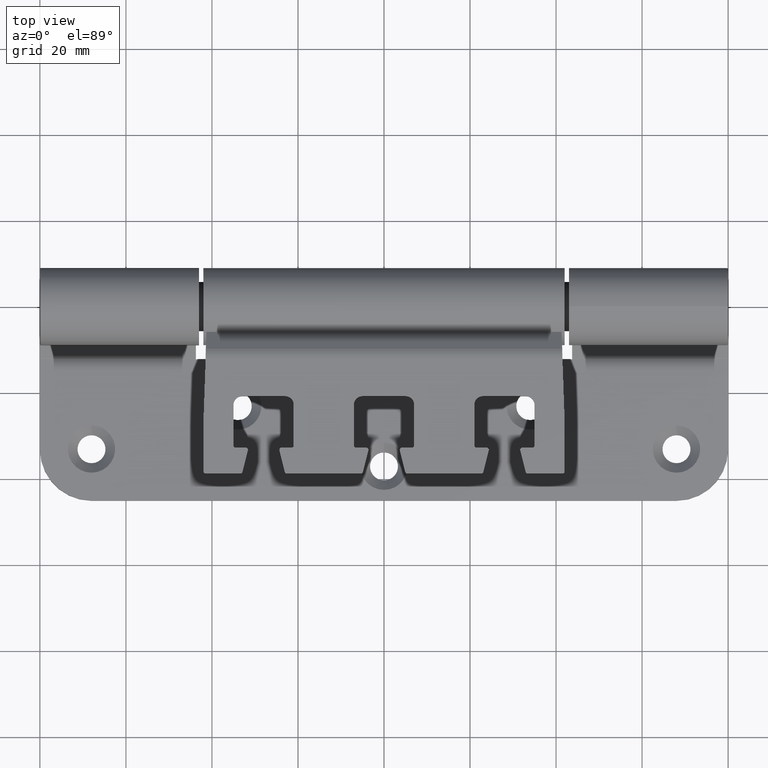
[diagram: clean part render]
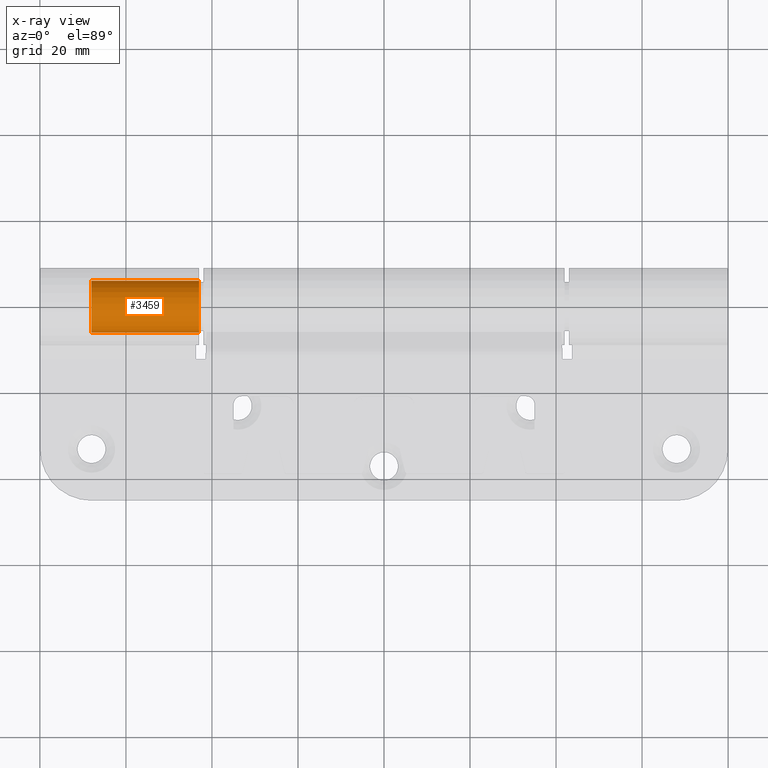
[diagram: x-ray — body ghosted, one internal face saturated and labeled with its STEP entity id]
A machine part, top view, then the same camera in x-ray: the body is ghosted and one INTERNAL B-rep face — a face not visible from any outside direction — is saturated and labeled: STEP entity #3459.
In plain terms, the highlighted cylindrical surface (bore or boss wall) has radius 6 mm, axis along (1, -0, -0).
Its self-contained STEP definition (entity closure, byte-faithful):
#275 = DIRECTION ( 'NONE',  ( -8.415141050721372500E-017, -5.551115123125775900E-017, 1.000000000000000000 ) ) ;
#648 = FACE_OUTER_BOUND ( 'NONE', #8405, .T. ) ;
#816 = ORIENTED_EDGE ( 'NONE', *, *, #5964, .F. ) ;
#1408 = CARTESIAN_POINT ( 'NONE',  ( 25.00000000000004300, -8.139322549283178900E-015, 6.000000000000007100 ) ) ;
#1665 = AXIS2_PLACEMENT_3D ( 'NONE', #13366, #6694, #275 ) ;
#1840 = CIRCLE ( 'NONE', #7724, 6.000000000000007100 ) ;
#2270 = VERTEX_POINT ( 'NONE', #1408 ) ;
#3414 = EDGE_LOOP ( 'NONE', ( #816 ) ) ;
#3459 = ADVANCED_FACE ( 'NONE', ( #10089, #648 ), #3911, .F. ) ;
#3911 = CYLINDRICAL_SURFACE ( 'NONE', #6034, 6.000000000000007100 ) ;
#5609 = DIRECTION ( 'NONE',  ( 0.0000000000000000000, -5.551115123125780900E-017, 1.000000000000000000 ) ) ;
#5768 = ORIENTED_EDGE ( 'NONE', *, *, #13104, .T. ) ;
#5964 = EDGE_CURVE ( 'NONE', #2270, #2270, #1840, .T. ) ;
#6034 = AXIS2_PLACEMENT_3D ( 'NONE', #7029, #8120, #10252 ) ;
#6694 = DIRECTION ( 'NONE',  ( -1.000000000000000000, 6.434363912748212100E-017, 8.415141050721278900E-017 ) ) ;
#7029 = CARTESIAN_POINT ( 'NONE',  ( 25.50000000000004300, -7.806255641895635100E-015, 8.859277744181284900E-030 ) ) ;
#7724 = AXIS2_PLACEMENT_3D ( 'NONE', #14107, #10757, #5609 ) ;
#8120 = DIRECTION ( 'NONE',  ( -1.000000000000000000, 6.434363912748212100E-017, 8.415141050721278900E-017 ) ) ;
#8405 = EDGE_LOOP ( 'NONE', ( #5768 ) ) ;
#8638 = VERTEX_POINT ( 'NONE', #10484 ) ;
#10089 = FACE_OUTER_BOUND ( 'NONE', #3414, .T. ) ;
#10252 = DIRECTION ( 'NONE',  ( 0.0000000000000000000, -5.551115123125780900E-017, 1.000000000000000000 ) ) ;
#10484 = CARTESIAN_POINT ( 'NONE',  ( -5.049084630432829200E-016, -3.330669073875469600E-016, 6.000000000000007100 ) ) ;
#10757 = DIRECTION ( 'NONE',  ( -1.000000000000000000, 6.434363912748212100E-017, 8.415141050721278900E-017 ) ) ;
#13104 = EDGE_CURVE ( 'NONE', #8638, #8638, #13345, .T. ) ;
#13345 = CIRCLE ( 'NONE', #1665, 6.000000000000007100 ) ;
#13366 = CARTESIAN_POINT ( 'NONE',  ( 0.0000000000000000000, 0.0000000000000000000, 0.0000000000000000000 ) ) ;
#14107 = CARTESIAN_POINT ( 'NONE',  ( 25.00000000000004300, -7.806255641895631900E-015, 1.155557966632341500E-030 ) ) ;